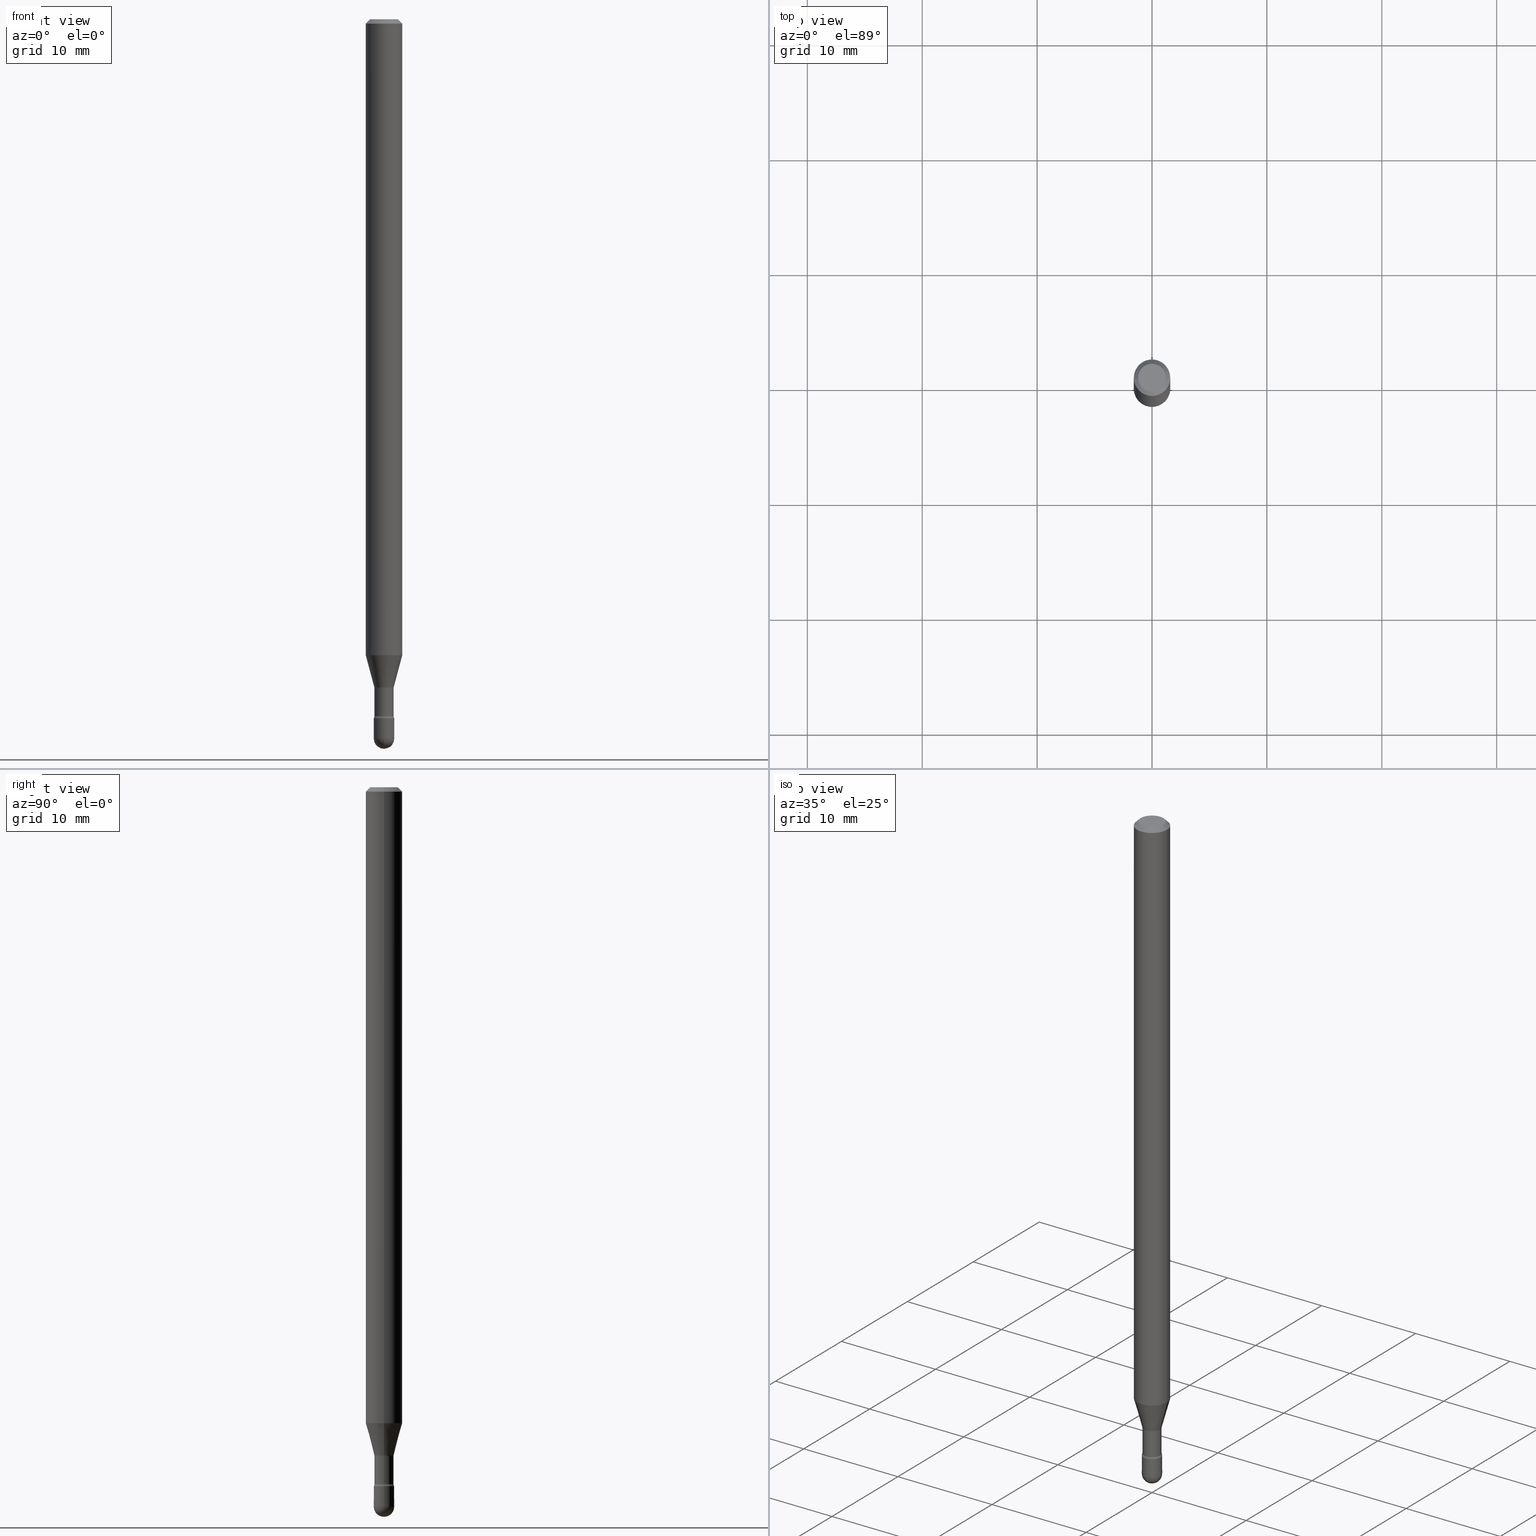
[diagram: canonical four-view strip — front | top / right | iso, engineering-drawing reading convention]
A machine part, canonical four-view strip (front | top / right | iso — engineering-drawing reading convention). The complete STEP part file that produces these views, byte-faithful:
ISO-10303-21;
HEADER;
FILE_DESCRIPTION (( 'STEP AP203' ),
    '1' );
FILE_NAME ('09515.STEP',
    '2024-04-10T00:07:16',
    ( '' ),
    ( '' ),
    'SwSTEP 2.0',
    'SolidWorks 2023',
    '' );
FILE_SCHEMA (( 'CONFIG_CONTROL_DESIGN' ));
ENDSEC;

DATA;
#1 = DIRECTION ( 'NONE',  ( -2.445468806185136877E-29, 3.491481338843145188E-15, 1.000000000000000000 ) ) ;
#2 = DIRECTION ( 'NONE',  ( -2.445468806185136597E-29, 3.491481338843145583E-15, 1.000000000000000000 ) ) ;
#3 = EDGE_CURVE ( 'NONE', #8, #126, #246, .T. ) ;
#4 = ORIENTED_EDGE ( 'NONE', *, *, #65, .F. ) ;
#5 = SPHERICAL_SURFACE ( 'NONE', #173, 0.03500000000000001721 ) ;
#6 = DIRECTION ( 'NONE',  ( 1.000000000000000000, -6.982962677686265922E-15, 4.883557194083112340E-29 ) ) ;
#7 = CARTESIAN_POINT ( 'NONE',  ( 0.03500000000000003803, -8.606501500248354960E-15, -2.395000000000000018 ) ) ;
#8 = VERTEX_POINT ( 'NONE', #147 ) ;
#9 = EDGE_CURVE ( 'NONE', #126, #8, #242, .T. ) ;
#10 = ORIENTED_EDGE ( 'NONE', *, *, #410, .F. ) ;
#11 = AXIS2_PLACEMENT_3D ( 'NONE', #271, #436, #136 ) ;
#12 = DIRECTION ( 'NONE',  ( -2.445468806185136597E-29, 3.491481338843145583E-15, 1.000000000000000000 ) ) ;
#13 = CARTESIAN_POINT ( 'NONE',  ( 5.856897790813402508E-29, -8.362097806529333416E-15, -2.395000000000000018 ) ) ;
#14 =( NAMED_UNIT ( * ) SI_UNIT ( $, .STERADIAN. ) SOLID_ANGLE_UNIT ( ) );
#15 = EDGE_CURVE ( 'NONE', #464, #356, #551, .T. ) ;
#16 = ORIENTED_EDGE ( 'NONE', *, *, #527, .T. ) ;
#17 = DIRECTION ( 'NONE',  ( -2.445468806185136597E-29, 3.491481338843145583E-15, 1.000000000000000000 ) ) ;
#18 = ORIENTED_EDGE ( 'NONE', *, *, #320, .F. ) ;
#19 = FACE_OUTER_BOUND ( 'NONE', #476, .T. ) ;
#20 = AXIS2_PLACEMENT_3D ( 'NONE', #309, #252, #98 ) ;
#21 = ORIENTED_EDGE ( 'NONE', *, *, #451, .T. ) ;
#22 = DIRECTION ( 'NONE',  ( 1.000000000000000000, -6.982962677686266711E-15, 4.852736867747366207E-29 ) ) ;
#23 = AXIS2_PLACEMENT_3D ( 'NONE', #229, #54, #447 ) ;
#24 = AXIS2_PLACEMENT_3D ( 'NONE', #418, #30, #354 ) ;
#25 = EDGE_CURVE ( 'NONE', #305, #402, #470, .T. ) ;
#26 = EDGE_CURVE ( 'NONE', #402, #305, #101, .T. ) ;
#27 = CARTESIAN_POINT ( 'NONE',  ( -1.169113584055446105E-44, 1.669184350826100908E-30, 4.780733988912460139E-16 ) ) ;
#28 = ORIENTED_EDGE ( 'NONE', *, *, #334, .F. ) ;
#29 = AXIS2_PLACEMENT_3D ( 'NONE', #324, #200, #169 ) ;
#30 = DIRECTION ( 'NONE',  ( -2.445468806185136597E-29, 3.491481338843145583E-15, 1.000000000000000000 ) ) ;
#31 = DIRECTION ( 'NONE',  ( 1.000000000000000000, -6.982962677686248567E-15, 0.000000000000000000 ) ) ;
#32 = ORIENTED_EDGE ( 'NONE', *, *, #462, .F. ) ;
#33 = DIRECTION ( 'NONE',  ( -2.445468806185136597E-29, 3.491481338843145583E-15, 1.000000000000000000 ) ) ;
#34 = CARTESIAN_POINT ( 'NONE',  ( 5.604952847305558337E-29, -8.002387199528881191E-15, -2.291974787463811225 ) ) ;
#35 = VERTEX_POINT ( 'NONE', #7 ) ;
#36 = FACE_OUTER_BOUND ( 'NONE', #44, .T. ) ;
#37 = CYLINDRICAL_SURFACE ( 'NONE', #486, 0.03500000000000000333 ) ;
#38 = ORIENTED_EDGE ( 'NONE', *, *, #94, .T. ) ;
#39 = CIRCLE ( 'NONE', #255, 0.03500000000000000333 ) ;
#40 = DIRECTION ( 'NONE',  ( -2.445468806185136597E-29, 3.491481338843145583E-15, 1.000000000000000000 ) ) ;
#41 = DIRECTION ( 'NONE',  ( 6.982962677686265922E-15, 1.000000000000000000, 0.000000000000000000 ) ) ;
#42 = AXIS2_PLACEMENT_3D ( 'NONE', #287, #60, #542 ) ;
#43 = FACE_OUTER_BOUND ( 'NONE', #428, .T. ) ;
#44 = EDGE_LOOP ( 'NONE', ( #141, #250, #485, #96 ) ) ;
#45 = DIRECTION ( 'NONE',  ( -1.000000000000000000, 7.105427357600978193E-15, 0.000000000000000000 ) ) ;
#46 = COORDINATED_UNIVERSAL_TIME_OFFSET ( 5, 0, .BEHIND. ) ;
#47 = EDGE_CURVE ( 'NONE', #86, #210, #50, .T. ) ;
#48 = ORIENTED_EDGE ( 'NONE', *, *, #83, .T. ) ;
#49 = CARTESIAN_POINT ( 'NONE',  ( 5.595458838786885594E-29, -7.988832271537191393E-15, -2.288092501787273303 ) ) ;
#50 = LINE ( 'NONE', #530, #380 ) ;
#51 = CIRCLE ( 'NONE', #121, 0.03289999999999994318 ) ;
#52 = DIRECTION ( 'NONE',  ( -2.445468806185136597E-29, 3.491481338843145583E-15, 1.000000000000000000 ) ) ;
#53 = EDGE_CURVE ( 'NONE', #115, #399, #453, .T. ) ;
#54 = DIRECTION ( 'NONE',  ( -2.445468806185136597E-29, 3.491481338843145583E-15, 1.000000000000000000 ) ) ;
#55 = CARTESIAN_POINT ( 'NONE',  ( 3.668203209277725232E-31, -5.237222008264747365E-17, -0.01500000000000008271 ) ) ;
#56 = DIRECTION ( 'NONE',  ( 2.445468806185136597E-29, -3.491481338843145583E-15, -1.000000000000000000 ) ) ;
#57 = CARTESIAN_POINT ( 'NONE',  ( 5.838179168722290516E-29, -8.335372575132116772E-15, -2.387345589506695731 ) ) ;
#58 = CALENDAR_DATE ( 2024, 9, 4 ) ;
#59 = EDGE_CURVE ( 'NONE', #105, #115, #237, .T. ) ;
#60 = DIRECTION ( 'NONE',  ( -2.445468806185136597E-29, 3.491481338843145583E-15, 1.000000000000000000 ) ) ;
#61 = TOROIDAL_SURFACE ( 'NONE', #107, 0.04790000000000001201, 0.01500000000000006710 ) ;
#62 = CARTESIAN_POINT ( 'NONE',  ( 0.06250000000000000000, -4.811533449433681963E-16, -0.01500000000000008271 ) ) ;
#63 = AXIS2_PLACEMENT_3D ( 'NONE', #99, #235, #102 ) ;
#64 = CIRCLE ( 'NONE', #90, 0.03289999999999999869 ) ;
#65 = EDGE_CURVE ( 'NONE', #116, #86, #389, .T. ) ;
#66 = CYLINDRICAL_SURFACE ( 'NONE', #233, 0.03289999999999997787 ) ;
#67 = ORIENTED_EDGE ( 'NONE', *, *, #364, .F. ) ;
#68 = CARTESIAN_POINT ( 'NONE',  ( 5.604952847305558337E-29, -8.002387199528881191E-15, -2.291974787463811225 ) ) ;
#69 = DIRECTION ( 'NONE',  ( 0.000000000000000000, 0.000000000000000000, 1.000000000000000000 ) ) ;
#70 = EDGE_LOOP ( 'NONE', ( #48, #16 ) ) ;
#71 = PERSON_AND_ORGANIZATION_ROLE ( 'design_supplier' ) ;
#72 = CIRCLE ( 'NONE', #368, 0.03500000000000001721 ) ;
#73 = VECTOR ( 'NONE', #377, 39.37007874015748143 ) ;
#74 = EDGE_CURVE ( 'NONE', #555, #525, #528, .T. ) ;
#75 = CARTESIAN_POINT ( 'NONE',  ( 0.03500000000000000333, -8.728703347107863365E-15, -2.464999999999999858 ) ) ;
#76 = PERSON_AND_ORGANIZATION ( #502, #139 ) ;
#77 = FACE_OUTER_BOUND ( 'NONE', #70, .T. ) ;
#78 = ORIENTED_EDGE ( 'NONE', *, *, #538, .F. ) ;
#79 = FACE_OUTER_BOUND ( 'NONE', #445, .T. ) ;
#80 = LENGTH_MEASURE_WITH_UNIT ( LENGTH_MEASURE( 0.02539999999999999897 ), #516 );
#81 = ORIENTED_EDGE ( 'NONE', *, *, #410, .T. ) ;
#82 = APPROVAL_DATE_TIME ( #474, #297 ) ;
#83 = EDGE_CURVE ( 'NONE', #184, #210, #360, .T. ) ;
#84 = COORDINATED_UNIVERSAL_TIME_OFFSET ( 5, 0, .BEHIND. ) ;
#85 = CARTESIAN_POINT ( 'NONE',  ( 0.03289999999999994318, -8.565112047227994531E-15, -2.387345589506695731 ) ) ;
#86 = VERTEX_POINT ( 'NONE', #290 ) ;
#87 = DIRECTION ( 'NONE',  ( -6.982962677686266711E-15, -1.000000000000000000, 3.491481338843145583E-15 ) ) ;
#88 = ADVANCED_FACE ( 'NONE', ( #463 ), #66, .T. ) ;
#89 = CARTESIAN_POINT ( 'NONE',  ( 6.028080607246362204E-29, -8.606501500248354960E-15, -2.464999999999999858 ) ) ;
#90 = AXIS2_PLACEMENT_3D ( 'NONE', #260, #333, #256 ) ;
#91 = APPROVAL_STATUS ( 'not_yet_approved' ) ;
#92 = DIRECTION ( 'NONE',  ( -1.000000000000000000, 6.982962677686266711E-15, 0.000000000000000000 ) ) ;
#93 = DIRECTION ( 'NONE',  ( 1.000000000000000000, -6.982962677686267499E-15, 4.884662768193073002E-29 ) ) ;
#94 = EDGE_CURVE ( 'NONE', #35, #413, #39, .T. ) ;
#95 = DIRECTION ( 'NONE',  ( 7.105427357601001859E-15, 1.000000000000000000, -3.491481338843145583E-15 ) ) ;
#96 = ORIENTED_EDGE ( 'NONE', *, *, #26, .F. ) ;
#97 = LINE ( 'NONE', #208, #138 ) ;
#98 = DIRECTION ( 'NONE',  ( 1.000000000000000000, -6.982962677686266711E-15, 4.883557194083113462E-29 ) ) ;
#99 = CARTESIAN_POINT ( 'NONE',  ( 5.604952847305558337E-29, -8.002387199528881191E-15, -2.291974787463811225 ) ) ;
#100 = DIRECTION ( 'NONE',  ( -2.445468806185136597E-29, 3.491481338843145583E-15, 1.000000000000000000 ) ) ;
#101 = CIRCLE ( 'NONE', #23, 0.06250000000000000000 ) ;
#102 = DIRECTION ( 'NONE',  ( 1.000000000000000000, -6.982962677686252511E-15, 0.000000000000000000 ) ) ;
#103 = AXIS2_PLACEMENT_3D ( 'NONE', #341, #559, #45 ) ;
#104 = PERSON_AND_ORGANIZATION ( #502, #139 ) ;
#105 = VERTEX_POINT ( 'NONE', #85 ) ;
#106 = EDGE_CURVE ( 'NONE', #555, #116, #72, .T. ) ;
#107 = AXIS2_PLACEMENT_3D ( 'NONE', #57, #17, #199 ) ;
#108 = PERSON_AND_ORGANIZATION ( #502, #139 ) ;
#109 = CC_DESIGN_APPROVAL ( #266, ( #553 ) ) ;
#110 = DIRECTION ( 'NONE',  ( -2.445468806185136597E-29, 3.491481338843145583E-15, 1.000000000000000000 ) ) ;
#111 = EDGE_CURVE ( 'NONE', #8, #402, #492, .T. ) ;
#112 = VECTOR ( 'NONE', #188, 39.37007874015748143 ) ;
#113 = CIRCLE ( 'NONE', #328, 0.03500000000000000333 ) ;
#114 = SECURITY_CLASSIFICATION ( '', '', #157 ) ;
#115 = VERTEX_POINT ( 'NONE', #228 ) ;
#116 = VERTEX_POINT ( 'NONE', #533 ) ;
#117 = CARTESIAN_POINT ( 'NONE',  ( 3.668203209277725232E-31, -5.237222008264747365E-17, -0.01500000000000008271 ) ) ;
#118 = CARTESIAN_POINT ( 'NONE',  ( 0.000000000000000000, 0.000000000000000000, 0.000000000000000000 ) ) ;
#119 = APPROVAL_STATUS ( 'not_yet_approved' ) ;
#120 = ORIENTED_EDGE ( 'NONE', *, *, #148, .F. ) ;
#121 = AXIS2_PLACEMENT_3D ( 'NONE', #134, #512, #180 ) ;
#122 = CIRCLE ( 'NONE', #204, 0.03500000000000000333 ) ;
#123 = LOCAL_TIME ( 20, 7, 16.00000000000000000, #84 ) ;
#124 = CYLINDRICAL_SURFACE ( 'NONE', #293, 0.03289999999999997787 ) ;
#125 = PERSON_AND_ORGANIZATION ( #502, #139 ) ;
#126 = VERTEX_POINT ( 'NONE', #529 ) ;
#127 = CALENDAR_DATE ( 2024, 9, 4 ) ;
#128 = CARTESIAN_POINT ( 'NONE',  ( -0.03500000000000000333, -8.235609695872808902E-15, -2.395000000000000018 ) ) ;
#129 = ORIENTED_EDGE ( 'NONE', *, *, #307, .F. ) ;
#130 = CARTESIAN_POINT ( 'NONE',  ( 0.04790000000000000507, -8.336871111790053896E-15, -2.291974787463811225 ) ) ;
#131 = ADVANCED_FACE ( 'NONE', ( #359 ), #182, .F. ) ;
#132 = DIRECTION ( 'NONE',  ( 1.000000000000000000, -6.982962677686265922E-15, 4.793737027410015373E-29 ) ) ;
#133 = CALENDAR_DATE ( 2024, 9, 4 ) ;
#134 = CARTESIAN_POINT ( 'NONE',  ( 5.838179168722289395E-29, -8.335372575132116772E-15, -2.387345589506695731 ) ) ;
#135 = ORIENTED_EDGE ( 'NONE', *, *, #65, .T. ) ;
#136 = DIRECTION ( 'NONE',  ( 1.000000000000000000, -6.982962677686235156E-15, 0.000000000000000000 ) ) ;
#137 = DIRECTION ( 'NONE',  ( -1.000000000000000000, 6.982962677686265922E-15, -4.883557194083112340E-29 ) ) ;
#138 = VECTOR ( 'NONE', #353, 39.37007874015748143 ) ;
#139 = ORGANIZATION ( 'UNSPECIFIED', 'UNSPECIFIED', '' ) ;
#140 = CARTESIAN_POINT ( 'NONE',  ( 2.444036937190778979E-16, 0.03499999999999164196, -2.395000000000000018 ) ) ;
#141 = ORIENTED_EDGE ( 'NONE', *, *, #249, .F. ) ;
#142 = DIRECTION ( 'NONE',  ( 6.982962677686265922E-15, 1.000000000000000000, 0.000000000000000000 ) ) ;
#143 = CARTESIAN_POINT ( 'NONE',  ( 2.023552857353652888E-45, -2.889097183224559242E-31, -8.274703207154537794E-17 ) ) ;
#144 = CARTESIAN_POINT ( 'NONE',  ( 5.856897790813402508E-29, -8.362097806529333416E-15, -2.395000000000000018 ) ) ;
#145 = DIRECTION ( 'NONE',  ( 1.000000000000000000, -6.982962677686267499E-15, 4.884662768193073002E-29 ) ) ;
#146 = AXIS2_PLACEMENT_3D ( 'NONE', #117, #392, #521 ) ;
#147 = CARTESIAN_POINT ( 'NONE',  ( -0.04749999999999999362, 3.578768372314208041E-16, -8.274703207154778150E-17 ) ) ;
#148 = EDGE_CURVE ( 'NONE', #365, #413, #545, .T. ) ;
#149 = CYLINDRICAL_SURFACE ( 'NONE', #303, 0.06250000000000000000 ) ;
#150 = CC_DESIGN_DATE_AND_TIME_ASSIGNMENT ( #432, #220, ( #501 ) ) ;
#151 = DIRECTION ( 'NONE',  ( -2.445468806185136597E-29, 3.491481338843145583E-15, 1.000000000000000000 ) ) ;
#152 = DIRECTION ( 'NONE',  ( 1.000000000000000000, -6.982962677686276966E-15, 0.000000000000000000 ) ) ;
#153 = ORIENTED_EDGE ( 'NONE', *, *, #190, .T. ) ;
#154 = LOCAL_TIME ( 20, 7, 16.00000000000000000, #304 ) ;
#155 = ADVANCED_FACE ( 'NONE', ( #43 ), #394, .F. ) ;
#156 = FACE_OUTER_BOUND ( 'NONE', #452, .T. ) ;
#157 = SECURITY_CLASSIFICATION_LEVEL ( 'unclassified' ) ;
#158 = AXIS2_PLACEMENT_3D ( 'NONE', #68, #475, #251 ) ;
#159 = TOROIDAL_SURFACE ( 'NONE', #487, 0.04790000000000000507, 0.01500000000000003240 ) ;
#160 = DIRECTION ( 'NONE',  ( -2.445468806185136597E-29, 3.491481338843145583E-15, 1.000000000000000000 ) ) ;
#161 = CARTESIAN_POINT ( 'NONE',  ( 5.856897790813402508E-29, -8.362097806529333416E-15, -2.395000000000000018 ) ) ;
#162 = FACE_OUTER_BOUND ( 'NONE', #514, .T. ) ;
#163 = ORIENTED_EDGE ( 'NONE', *, *, #544, .T. ) ;
#164 = DIRECTION ( 'NONE',  ( -2.445468806185136877E-29, 3.491481338843145188E-15, 1.000000000000000000 ) ) ;
#165 = CARTESIAN_POINT ( 'NONE',  ( 6.028080607246362204E-29, -8.606501500248354960E-15, -2.464999999999999858 ) ) ;
#166 = PERSON_AND_ORGANIZATION ( #502, #139 ) ;
#167 = ORIENTED_EDGE ( 'NONE', *, *, #185, .T. ) ;
#168 = SHAPE_DEFINITION_REPRESENTATION ( #337, #282 ) ;
#169 = DIRECTION ( 'NONE',  ( -7.105427357601001859E-15, -1.000000000000000000, 0.000000000000000000 ) ) ;
#170 = FACE_OUTER_BOUND ( 'NONE', #221, .T. ) ;
#171 = PERSON_AND_ORGANIZATION_ROLE ( 'design_owner' ) ;
#172 = ORIENTED_EDGE ( 'NONE', *, *, #83, .F. ) ;
#173 = AXIS2_PLACEMENT_3D ( 'NONE', #345, #137, #41 ) ;
#174 = CARTESIAN_POINT ( 'NONE',  ( -1.169113584055446105E-44, 1.669184350826100908E-30, 4.780733988912460139E-16 ) ) ;
#175 = APPROVAL_DATE_TIME ( #310, #230 ) ;
#176 = EDGE_CURVE ( 'NONE', #365, #105, #51, .T. ) ;
#177 = DIRECTION ( 'NONE',  ( 1.000000000000000000, -6.982962677686276966E-15, 0.000000000000000000 ) ) ;
#178 = ORIENTED_EDGE ( 'NONE', *, *, #47, .T. ) ;
#179 = DIRECTION ( 'NONE',  ( 0.2588190451025209060, 1.565188264969625123E-15, 0.9659258262890682012 ) ) ;
#180 = DIRECTION ( 'NONE',  ( 1.000000000000000000, -6.982962677686264344E-15, 0.000000000000000000 ) ) ;
#181 = DIRECTION ( 'NONE',  ( 1.000000000000000000, -6.982962677686272233E-15, 4.883557194083114583E-29 ) ) ;
#182 = PLANE ( 'NONE',  #433 ) ;
#183 = ORIENTED_EDGE ( 'NONE', *, *, #25, .T. ) ;
#184 = VERTEX_POINT ( 'NONE', #209 ) ;
#185 = EDGE_CURVE ( 'NONE', #279, #116, #411, .T. ) ;
#186 = TOROIDAL_SURFACE ( 'NONE', #20, 0.04790000000000001201, 0.01500000000000006710 ) ;
#187 = CC_DESIGN_APPROVAL ( #230, ( #501 ) ) ;
#188 = DIRECTION ( 'NONE',  ( -0.7071067811865475727, 2.468850131082257455E-15, -0.7071067811865474617 ) ) ;
#189 = EDGE_LOOP ( 'NONE', ( #273, #163, #439, #466, #498 ) ) ;
#190 = EDGE_CURVE ( 'NONE', #365, #399, #558, .T. ) ;
#191 = CARTESIAN_POINT ( 'NONE',  ( 0.000000000000000000, 0.000000000000000000, 0.000000000000000000 ) ) ;
#192 = CARTESIAN_POINT ( 'NONE',  ( 6.028080607246362204E-29, -8.606501500248354960E-15, -2.464999999999999858 ) ) ;
#193 = DIRECTION ( 'NONE',  ( -2.445468806185136597E-29, 3.491481338843145583E-15, 1.000000000000000000 ) ) ;
#194 = DIRECTION ( 'NONE',  ( -2.445468806185136597E-29, 3.491481338843145583E-15, 1.000000000000000000 ) ) ;
#195 =( NAMED_UNIT ( * ) PLANE_ANGLE_UNIT ( ) SI_UNIT ( $, .RADIAN. ) );
#196 = AXIS2_PLACEMENT_3D ( 'NONE', #480, #160, #416 ) ;
#197 = ORIENTED_EDGE ( 'NONE', *, *, #3, .F. ) ;
#198 = ADVANCED_FACE ( 'NONE', ( #379 ), #340, .T. ) ;
#199 = DIRECTION ( 'NONE',  ( 1.000000000000000000, -6.982962677686266711E-15, 4.883557194083113462E-29 ) ) ;
#200 = DIRECTION ( 'NONE',  ( -1.000000000000000000, 7.105427357601001070E-15, -4.926315508542082329E-29 ) ) ;
#201 = DIRECTION ( 'NONE',  ( 1.000000000000000000, -6.982962677686254878E-15, 0.000000000000000000 ) ) ;
#202 = EDGE_LOOP ( 'NONE', ( #520, #301, #21, #319 ) ) ;
#203 = AXIS2_PLACEMENT_3D ( 'NONE', #442, #370, #493 ) ;
#204 = AXIS2_PLACEMENT_3D ( 'NONE', #482, #223, #437 ) ;
#205 = ADVANCED_FACE ( 'NONE', ( #162 ), #472, .F. ) ;
#206 = APPROVAL_STATUS ( 'not_yet_approved' ) ;
#207 = ORIENTED_EDGE ( 'NONE', *, *, #111, .F. ) ;
#208 = CARTESIAN_POINT ( 'NONE',  ( 0.03500000000000000333, -2.444036937190193250E-16, 1.706661871528577808E-30 ) ) ;
#209 = CARTESIAN_POINT ( 'NONE',  ( 0.03500000000000000333, -8.606501500248353382E-15, -2.395000000000000018 ) ) ;
#210 = VERTEX_POINT ( 'NONE', #128 ) ;
#211 = VECTOR ( 'NONE', #232, 39.37007874015748143 ) ;
#212 = EDGE_CURVE ( 'NONE', #522, #479, #234, .T. ) ;
#213 = CONICAL_SURFACE ( 'NONE', #381, 0.03341111260566397706, 0.2617993877991495744 ) ;
#214 =( GEOMETRIC_REPRESENTATION_CONTEXT ( 3 ) GLOBAL_UNCERTAINTY_ASSIGNED_CONTEXT ( ( #317 ) ) GLOBAL_UNIT_ASSIGNED_CONTEXT ( ( #540, #195, #14 ) ) REPRESENTATION_CONTEXT ( 'NONE', 'WORKASPACE' ) );
#215 = CARTESIAN_POINT ( 'NONE',  ( 5.595458838786885594E-29, -7.988832271537191393E-15, -2.288092501787273303 ) ) ;
#216 = FACE_OUTER_BOUND ( 'NONE', #189, .T. ) ;
#217 = CARTESIAN_POINT ( 'NONE',  ( 6.028080607246362204E-29, -8.606501500248354960E-15, -2.464999999999999858 ) ) ;
#218 = EDGE_LOOP ( 'NONE', ( #227, #565, #270, #4 ) ) ;
#219 = DIRECTION ( 'NONE',  ( 1.000000000000000000, -6.982962677686276966E-15, 0.000000000000000000 ) ) ;
#220 = DATE_TIME_ROLE ( 'creation_date' ) ;
#221 = EDGE_LOOP ( 'NONE', ( #536, #386, #183, #207 ) ) ;
#222 = ADVANCED_FACE ( 'NONE', ( #170 ), #243, .T. ) ;
#223 = DIRECTION ( 'NONE',  ( -2.445468806185136597E-29, 3.491481338843145583E-15, 1.000000000000000000 ) ) ;
#224 = PRODUCT_RELATED_PRODUCT_CATEGORY ( 'detail', '', ( #415 ) ) ;
#225 = VECTOR ( 'NONE', #1, 39.37007874015748143 ) ;
#226 = DIRECTION ( 'NONE',  ( -1.000000000000000000, 6.982962677686265922E-15, -4.883557194083112340E-29 ) ) ;
#227 = ORIENTED_EDGE ( 'NONE', *, *, #106, .F. ) ;
#228 = CARTESIAN_POINT ( 'NONE',  ( 0.03289999999999999869, -8.232126671624758949E-15, -2.291974787463811225 ) ) ;
#229 = CARTESIAN_POINT ( 'NONE',  ( 3.668203209277725232E-31, -5.237222008264747365E-17, -0.01500000000000008271 ) ) ;
#230 = APPROVAL ( #119, 'UNSPECIFIED' ) ;
#231 = DIRECTION ( 'NONE',  ( 2.438088387897960049E-29, -3.491481338843145188E-15, -1.000000000000000000 ) ) ;
#232 = DIRECTION ( 'NONE',  ( -2.445468806185136877E-29, 3.491481338843145188E-15, 1.000000000000000000 ) ) ;
#233 = AXIS2_PLACEMENT_3D ( 'NONE', #27, #110, #456 ) ;
#234 = CIRCLE ( 'NONE', #24, 0.06250000000000000000 ) ;
#235 = DIRECTION ( 'NONE',  ( -2.445468806185136597E-29, 3.491481338843145583E-15, 1.000000000000000000 ) ) ;
#236 = CARTESIAN_POINT ( 'NONE',  ( -0.06250000000000000000, -3.386993324063092812E-15, -0.01500000000000008271 ) ) ;
#237 = LINE ( 'NONE', #401, #211 ) ;
#238 = ADVANCED_FACE ( 'NONE', ( #344 ), #213, .T. ) ;
#239 = DIRECTION ( 'NONE',  ( 1.000000000000000000, -6.982962677686266711E-15, 0.000000000000000000 ) ) ;
#240 = CARTESIAN_POINT ( 'NONE',  ( 5.329975796706934398E-29, -7.609792847743663382E-15, -2.179531296095961412 ) ) ;
#241 = DATE_AND_TIME ( #58, #532 ) ;
#242 = CIRCLE ( 'NONE', #321, 0.04749999999999999362 ) ;
#243 = CONICAL_SURFACE ( 'NONE', #146, 0.06250000000000000000, 0.7853981633974483900 ) ;
#244 = CARTESIAN_POINT ( 'NONE',  ( 0.06250000000000000000, -8.046228015099055052E-15, -2.179531296095961412 ) ) ;
#245 = EDGE_LOOP ( 'NONE', ( #81, #153, #489, #425 ) ) ;
#246 = CIRCLE ( 'NONE', #346, 0.04749999999999999362 ) ;
#247 = AXIS2_PLACEMENT_3D ( 'NONE', #240, #100, #326 ) ;
#248 = CC_DESIGN_APPROVAL ( #297, ( #114 ) ) ;
#249 = EDGE_CURVE ( 'NONE', #522, #402, #300, .T. ) ;
#250 = ORIENTED_EDGE ( 'NONE', *, *, #212, .T. ) ;
#251 = DIRECTION ( 'NONE',  ( 1.000000000000000000, -6.982962677686272233E-15, 4.883557194083114583E-29 ) ) ;
#252 = DIRECTION ( 'NONE',  ( -2.445468806185136597E-29, 3.491481338843145583E-15, 1.000000000000000000 ) ) ;
#253 = MECHANICAL_CONTEXT ( 'NONE', #509, 'mechanical' ) ;
#254 = EDGE_LOOP ( 'NONE', ( #560, #330, #372, #495 ) ) ;
#255 = AXIS2_PLACEMENT_3D ( 'NONE', #161, #298, #177 ) ;
#256 = DIRECTION ( 'NONE',  ( 1.000000000000000000, -6.982962677686252511E-15, 0.000000000000000000 ) ) ;
#257 = VECTOR ( 'NONE', #289, 39.37007874015748143 ) ;
#258 = CARTESIAN_POINT ( 'NONE',  ( -0.06250000000000000000, 4.440892098500642925E-16, 4.780733988912429571E-16 ) ) ;
#259 = DIRECTION ( 'NONE',  ( -2.445468806185136597E-29, 3.491481338843145583E-15, 1.000000000000000000 ) ) ;
#260 = CARTESIAN_POINT ( 'NONE',  ( 5.604952847305558337E-29, -8.002387199528881191E-15, -2.291974787463811225 ) ) ;
#261 = CALENDAR_DATE ( 2024, 9, 4 ) ;
#262 = ORIENTED_EDGE ( 'NONE', *, *, #375, .T. ) ;
#263 = ADVANCED_FACE ( 'NONE', ( #468 ), #124, .T. ) ;
#264 = CARTESIAN_POINT ( 'NONE',  ( 5.595458838786885594E-29, -7.988832271537191393E-15, -2.288092501787273303 ) ) ;
#265 = APPLICATION_PROTOCOL_DEFINITION ( 'international standard', 'config_control_design', 1994, #535 ) ;
#266 = APPROVAL ( #91, 'UNSPECIFIED' ) ;
#267 = ORIENTED_EDGE ( 'NONE', *, *, #3, .T. ) ;
#268 = DIRECTION ( 'NONE',  ( 1.000000000000000000, -6.982962677686254878E-15, 0.000000000000000000 ) ) ;
#269 = DIRECTION ( 'NONE',  ( 1.000000000000000000, -6.982962677686265922E-15, 4.876176775795935793E-29 ) ) ;
#270 = ORIENTED_EDGE ( 'NONE', *, *, #544, .F. ) ;
#271 = CARTESIAN_POINT ( 'NONE',  ( 0.04790000000000001201, -8.669856487393289478E-15, -2.387345589506695731 ) ) ;
#272 = APPROVAL_ROLE ( '' ) ;
#273 = ORIENTED_EDGE ( 'NONE', *, *, #47, .F. ) ;
#274 = DIRECTION ( 'NONE',  ( 1.000000000000000000, -6.982962677686255667E-15, 0.000000000000000000 ) ) ;
#275 = DIRECTION ( 'NONE',  ( 1.000000000000000000, -6.982962677686265922E-15, 4.876176775795935793E-29 ) ) ;
#276 = DIRECTION ( 'NONE',  ( -1.000000000000000000, 6.982962677686265922E-15, -4.876176775795935793E-29 ) ) ;
#277 = ORIENTED_EDGE ( 'NONE', *, *, #249, .T. ) ;
#278 = CARTESIAN_POINT ( 'NONE',  ( -0.06250000000000000000, 3.840629472727441958E-16, -0.01500000000000008271 ) ) ;
#279 = VERTEX_POINT ( 'NONE', #75 ) ;
#280 = CARTESIAN_POINT ( 'NONE',  ( 6.028080607246362204E-29, -8.606501500248354960E-15, -2.464999999999999858 ) ) ;
#281 = CONICAL_SURFACE ( 'NONE', #446, 0.06250000000000000000, 0.7853981633974483900 ) ;
#282 = ADVANCED_BREP_SHAPE_REPRESENTATION ( '09515', ( #491, #292, #362 ), #214 ) ;
#283 = APPROVAL_DATE_TIME ( #397, #266 ) ;
#284 = PERSON_AND_ORGANIZATION_ROLE ( 'classification_officer' ) ;
#285 = EDGE_CURVE ( 'NONE', #413, #35, #322, .T. ) ;
#286 = ORIENTED_EDGE ( 'NONE', *, *, #176, .F. ) ;
#287 = CARTESIAN_POINT ( 'NONE',  ( 5.838179168722289395E-29, -8.335372575132116772E-15, -2.387345589506695731 ) ) ;
#288 = DATE_TIME_ROLE ( 'classification_date' ) ;
#289 = DIRECTION ( 'NONE',  ( -0.2588190451025209060, 5.211531920934547097E-15, 0.9659258262890682012 ) ) ;
#290 = CARTESIAN_POINT ( 'NONE',  ( -0.03500000000000000333, -8.235609695872808902E-15, -2.464999999999999858 ) ) ;
#291 = ADVANCED_FACE ( 'NONE', ( #79 ), #552, .T. ) ;
#292 = MANIFOLD_SOLID_BREP ( 'Body-Move/Copy2[2]', #496 ) ;
#293 = AXIS2_PLACEMENT_3D ( 'NONE', #478, #40, #132 ) ;
#294 = LOCAL_TIME ( 20, 7, 16.00000000000000000, #419 ) ;
#295 = ADVANCED_FACE ( 'NONE', ( #36 ), #562, .T. ) ;
#296 = ORIENTED_EDGE ( 'NONE', *, *, #26, .T. ) ;
#297 = APPROVAL ( #206, 'UNSPECIFIED' ) ;
#298 = DIRECTION ( 'NONE',  ( -2.445468806185136597E-29, 3.491481338843145583E-15, 1.000000000000000000 ) ) ;
#299 = EDGE_LOOP ( 'NONE', ( #505, #277, #395, #32 ) ) ;
#300 = LINE ( 'NONE', #258, #225 ) ;
#301 = ORIENTED_EDGE ( 'NONE', *, *, #538, .T. ) ;
#302 = AXIS2_PLACEMENT_3D ( 'NONE', #524, #231, #276 ) ;
#303 = AXIS2_PLACEMENT_3D ( 'NONE', #367, #193, #325 ) ;
#304 = COORDINATED_UNIVERSAL_TIME_OFFSET ( 5, 0, .BEHIND. ) ;
#305 = VERTEX_POINT ( 'NONE', #331 ) ;
#306 = ORIENTED_EDGE ( 'NONE', *, *, #15, .T. ) ;
#307 = EDGE_CURVE ( 'NONE', #126, #305, #459, .T. ) ;
#308 = CARTESIAN_POINT ( 'NONE',  ( -2.486899575159748395E-16, -0.03500000000000861450, -2.464999999999999858 ) ) ;
#309 = CARTESIAN_POINT ( 'NONE',  ( 5.838179168722290516E-29, -8.335372575132116772E-15, -2.387345589506695731 ) ) ;
#310 = DATE_AND_TIME ( #133, #294 ) ;
#311 = CIRCLE ( 'NONE', #42, 0.03289999999999994318 ) ;
#312 = APPROVAL_PERSON_ORGANIZATION ( #125, #266, #272 ) ;
#313 = ADVANCED_FACE ( 'NONE', ( #156 ), #490, .T. ) ;
#314 = ORIENTED_EDGE ( 'NONE', *, *, #285, .T. ) ;
#315 = PERSON_AND_ORGANIZATION ( #502, #139 ) ;
#316 = DIRECTION ( 'NONE',  ( -2.445468806185136877E-29, 3.491481338843145188E-15, 1.000000000000000000 ) ) ;
#317 = UNCERTAINTY_MEASURE_WITH_UNIT (LENGTH_MEASURE( 1.000000000000000082E-05 ), #540, 'distance_accuracy_value', 'NONE');
#318 = CALENDAR_DATE ( 2024, 9, 4 ) ;
#319 = ORIENTED_EDGE ( 'NONE', *, *, #357, .F. ) ;
#320 = EDGE_CURVE ( 'NONE', #356, #479, #566, .T. ) ;
#321 = AXIS2_PLACEMENT_3D ( 'NONE', #143, #52, #145 ) ;
#322 = CIRCLE ( 'NONE', #506, 0.03500000000000000333 ) ;
#323 = CC_DESIGN_PERSON_AND_ORGANIZATION_ASSIGNMENT ( #166, #171, ( #415 ) ) ;
#324 = CARTESIAN_POINT ( 'NONE',  ( 6.028080607246362204E-29, -8.606501500248354960E-15, -2.464999999999999858 ) ) ;
#325 = DIRECTION ( 'NONE',  ( 1.000000000000000000, -6.982962677686266711E-15, 4.852736867747366207E-29 ) ) ;
#326 = DIRECTION ( 'NONE',  ( 1.000000000000000000, -6.982962677686262766E-15, 0.000000000000000000 ) ) ;
#327 = AXIS2_PLACEMENT_3D ( 'NONE', #55, #12, #239 ) ;
#328 = AXIS2_PLACEMENT_3D ( 'NONE', #280, #403, #504 ) ;
#329 = APPROVAL_PERSON_ORGANIZATION ( #404, #297, #561 ) ;
#330 = ORIENTED_EDGE ( 'NONE', *, *, #106, .T. ) ;
#331 = CARTESIAN_POINT ( 'NONE',  ( 0.06250000000000000000, -4.888073874380391431E-16, -0.01500000000000008271 ) ) ;
#332 = EDGE_LOOP ( 'NONE', ( #382, #547 ) ) ;
#333 = DIRECTION ( 'NONE',  ( -2.445468806185136597E-29, 3.491481338843145583E-15, 1.000000000000000000 ) ) ;
#334 = EDGE_CURVE ( 'NONE', #279, #184, #97, .T. ) ;
#335 = AXIS2_PLACEMENT_3D ( 'NONE', #554, #226, #515 ) ;
#336 = EDGE_LOOP ( 'NONE', ( #129, #197, #339, #296 ) ) ;
#337 = PRODUCT_DEFINITION_SHAPE ( 'NONE', 'NONE',  #501 ) ;
#338 = CARTESIAN_POINT ( 'NONE',  ( -0.03500000000000003803, -8.113407849013298919E-15, -2.395000000000000018 ) ) ;
#339 = ORIENTED_EDGE ( 'NONE', *, *, #111, .T. ) ;
#340 = SPHERICAL_SURFACE ( 'NONE', #335, 0.03500000000000001721 ) ;
#341 = CARTESIAN_POINT ( 'NONE',  ( -0.04790000000000000507, -7.662037229099792821E-15, -2.291974787463811225 ) ) ;
#342 = ORIENTED_EDGE ( 'NONE', *, *, #320, .T. ) ;
#343 = CC_DESIGN_PERSON_AND_ORGANIZATION_ASSIGNMENT ( #315, #400, ( #553 ) ) ;
#344 = FACE_OUTER_BOUND ( 'NONE', #352, .T. ) ;
#345 = CARTESIAN_POINT ( 'NONE',  ( 6.028080607246362204E-29, -8.606501500248354960E-15, -2.464999999999999858 ) ) ;
#346 = AXIS2_PLACEMENT_3D ( 'NONE', #363, #534, #93 ) ;
#347 = ORIENTED_EDGE ( 'NONE', *, *, #176, .T. ) ;
#348 = AXIS2_PLACEMENT_3D ( 'NONE', #89, #481, #465 ) ;
#349 = CIRCLE ( 'NONE', #103, 0.01500000000000002720 ) ;
#350 = DIRECTION ( 'NONE',  ( -2.445468806185136597E-29, 3.491481338843145583E-15, 1.000000000000000000 ) ) ;
#351 = DIRECTION ( 'NONE',  ( -2.445468806185136597E-29, 3.491481338843145583E-15, 1.000000000000000000 ) ) ;
#352 = EDGE_LOOP ( 'NONE', ( #262, #390, #510, #18 ) ) ;
#353 = DIRECTION ( 'NONE',  ( -2.445468806185136877E-29, 3.491481338843145188E-15, 1.000000000000000000 ) ) ;
#354 = DIRECTION ( 'NONE',  ( 1.000000000000000000, -6.982962677686262766E-15, 0.000000000000000000 ) ) ;
#355 = CARTESIAN_POINT ( 'NONE',  ( -0.04790000000000001201, -7.995022604703028402E-15, -2.387345589506695731 ) ) ;
#356 = VERTEX_POINT ( 'NONE', #378 ) ;
#357 = EDGE_CURVE ( 'NONE', #356, #115, #369, .T. ) ;
#358 = CC_DESIGN_PERSON_AND_ORGANIZATION_ASSIGNMENT ( #108, #284, ( #114 ) ) ;
#359 = FACE_OUTER_BOUND ( 'NONE', #332, .T. ) ;
#360 = CIRCLE ( 'NONE', #409, 0.03500000000000000333 ) ;
#361 = CIRCLE ( 'NONE', #247, 0.06250000000000000000 ) ;
#362 = AXIS2_PLACEMENT_3D ( 'NONE', #191, #69, #438 ) ;
#363 = CARTESIAN_POINT ( 'NONE',  ( 2.023552857353652888E-45, -2.889097183224559242E-31, -8.274703207154537794E-17 ) ) ;
#364 = EDGE_CURVE ( 'NONE', #105, #35, #531, .T. ) ;
#365 = VERTEX_POINT ( 'NONE', #440 ) ;
#366 = EDGE_LOOP ( 'NONE', ( #286, #434, #314, #67 ) ) ;
#367 = CARTESIAN_POINT ( 'NONE',  ( -1.169113584055446105E-44, 1.669184350826100908E-30, 4.780733988912460139E-16 ) ) ;
#368 = AXIS2_PLACEMENT_3D ( 'NONE', #217, #6, #142 ) ;
#369 = CIRCLE ( 'NONE', #420, 0.01500000000000002720 ) ;
#370 = DIRECTION ( 'NONE',  ( -2.445468806185136597E-29, 3.491481338843145583E-15, 1.000000000000000000 ) ) ;
#371 = FACE_OUTER_BOUND ( 'NONE', #336, .T. ) ;
#372 = ORIENTED_EDGE ( 'NONE', *, *, #185, .F. ) ;
#373 = AXIS2_PLACEMENT_3D ( 'NONE', #355, #95, #488 ) ;
#374 = ORIENTED_EDGE ( 'NONE', *, *, #357, .T. ) ;
#375 = EDGE_CURVE ( 'NONE', #356, #464, #539, .T. ) ;
#376 = CC_DESIGN_DATE_AND_TIME_ASSIGNMENT ( #241, #288, ( #114 ) ) ;
#377 = DIRECTION ( 'NONE',  ( -2.445468806185136877E-29, 3.491481338843145188E-15, 1.000000000000000000 ) ) ;
#378 = CARTESIAN_POINT ( 'NONE',  ( 0.03341111260566397706, -8.222140823882515987E-15, -2.288092501787273303 ) ) ;
#379 = FACE_OUTER_BOUND ( 'NONE', #254, .T. ) ;
#380 = VECTOR ( 'NONE', #316, 39.37007874015748143 ) ;
#381 = AXIS2_PLACEMENT_3D ( 'NONE', #215, #523, #384 ) ;
#382 = ORIENTED_EDGE ( 'NONE', *, *, #94, .F. ) ;
#383 = EDGE_CURVE ( 'NONE', #479, #522, #361, .T. ) ;
#384 = DIRECTION ( 'NONE',  ( 1.000000000000000000, -6.982962677686254878E-15, 0.000000000000000000 ) ) ;
#385 = CARTESIAN_POINT ( 'NONE',  ( 6.115168556468905002E-29, -8.726560215209356888E-15, -2.500000000000000000 ) ) ;
#386 = ORIENTED_EDGE ( 'NONE', *, *, #307, .T. ) ;
#387 = ORIENTED_EDGE ( 'NONE', *, *, #9, .T. ) ;
#388 = DIRECTION ( 'NONE',  ( 1.000000000000000000, -6.982962677686265922E-15, 4.876176775795936353E-29 ) ) ;
#389 = CIRCLE ( 'NONE', #458, 0.03500000000000000333 ) ;
#390 = ORIENTED_EDGE ( 'NONE', *, *, #455, .T. ) ;
#391 = AXIS2_PLACEMENT_3D ( 'NONE', #165, #259, #31 ) ;
#392 = DIRECTION ( 'NONE',  ( 2.445468806185136597E-29, -3.491481338843145583E-15, -1.000000000000000000 ) ) ;
#393 = EDGE_CURVE ( 'NONE', #525, #279, #113, .T. ) ;
#394 = PLANE ( 'NONE',  #302 ) ;
#395 = ORIENTED_EDGE ( 'NONE', *, *, #25, .F. ) ;
#396 = ORIENTED_EDGE ( 'NONE', *, *, #451, .F. ) ;
#397 = DATE_AND_TIME ( #318, #412 ) ;
#398 = DIRECTION ( 'NONE',  ( 1.000000000000000000, -6.982962677686248567E-15, 0.000000000000000000 ) ) ;
#399 = VERTEX_POINT ( 'NONE', #449 ) ;
#400 = PERSON_AND_ORGANIZATION_ROLE ( 'creator' ) ;
#401 = CARTESIAN_POINT ( 'NONE',  ( 0.03289999999999997787, -2.297394720958763284E-16, 4.780733988912475916E-16 ) ) ;
#402 = VERTEX_POINT ( 'NONE', #236 ) ;
#403 = DIRECTION ( 'NONE',  ( -2.445468806185136597E-29, 3.491481338843145583E-15, 1.000000000000000000 ) ) ;
#404 = PERSON_AND_ORGANIZATION ( #502, #139 ) ;
#405 = AXIS2_PLACEMENT_3D ( 'NONE', #144, #494, #275 ) ;
#406 = APPROVAL_PERSON_ORGANIZATION ( #517, #230, #471 ) ;
#407 = ADVANCED_FACE ( 'NONE', ( #19 ), #61, .F. ) ;
#408 = FACE_OUTER_BOUND ( 'NONE', #299, .T. ) ;
#409 = AXIS2_PLACEMENT_3D ( 'NONE', #13, #503, #152 ) ;
#410 = EDGE_CURVE ( 'NONE', #105, #365, #311, .T. ) ;
#411 = CIRCLE ( 'NONE', #348, 0.03500000000000000333 ) ;
#412 = LOCAL_TIME ( 20, 7, 16.00000000000000000, #46 ) ;
#413 = VERTEX_POINT ( 'NONE', #338 ) ;
#414 = CARTESIAN_POINT ( 'NONE',  ( 0.06250000000000000000, -4.364351673553899931E-16, 4.780733988912490708E-16 ) ) ;
#415 = PRODUCT ( '09515', '09515', '', ( #253 ) ) ;
#416 = DIRECTION ( 'NONE',  ( 1.000000000000000000, -6.982962677686265922E-15, 4.876176775795936353E-29 ) ) ;
#417 = ORIENTED_EDGE ( 'NONE', *, *, #190, .F. ) ;
#418 = CARTESIAN_POINT ( 'NONE',  ( 5.329975796706934398E-29, -7.609792847743663382E-15, -2.179531296095961412 ) ) ;
#419 = COORDINATED_UNIVERSAL_TIME_OFFSET ( 5, 0, .BEHIND. ) ;
#420 = AXIS2_PLACEMENT_3D ( 'NONE', #130, #87, #274 ) ;
#421 = ORIENTED_EDGE ( 'NONE', *, *, #59, .T. ) ;
#422 = LINE ( 'NONE', #457, #257 ) ;
#423 = CARTESIAN_POINT ( 'NONE',  ( 5.856897790813402508E-29, -8.362097806529333416E-15, -2.395000000000000018 ) ) ;
#424 = FACE_OUTER_BOUND ( 'NONE', #202, .T. ) ;
#425 = ORIENTED_EDGE ( 'NONE', *, *, #59, .F. ) ;
#426 = CARTESIAN_POINT ( 'NONE',  ( -0.03341111260566397706, -7.458567837937309797E-15, -2.288092501787273303 ) ) ;
#427 = DIRECTION ( 'NONE',  ( -2.445468806185136597E-29, 3.491481338843145583E-15, 1.000000000000000000 ) ) ;
#428 = EDGE_LOOP ( 'NONE', ( #267, #387 ) ) ;
#429 = ADVANCED_FACE ( 'NONE', ( #564 ), #186, .F. ) ;
#430 = CARTESIAN_POINT ( 'NONE',  ( -0.03289999999999997787, 2.337685600650744310E-16, 4.780733988912444362E-16 ) ) ;
#431 = FACE_OUTER_BOUND ( 'NONE', #218, .T. ) ;
#432 = DATE_AND_TIME ( #261, #123 ) ;
#433 = AXIS2_PLACEMENT_3D ( 'NONE', #140, #444, #269 ) ;
#434 = ORIENTED_EDGE ( 'NONE', *, *, #148, .T. ) ;
#435 = AXIS2_PLACEMENT_3D ( 'NONE', #174, #350, #22 ) ;
#436 = DIRECTION ( 'NONE',  ( -6.982962677686266711E-15, -1.000000000000000000, 3.491481338843145583E-15 ) ) ;
#437 = DIRECTION ( 'NONE',  ( 1.000000000000000000, -6.982962677686276966E-15, 0.000000000000000000 ) ) ;
#438 = DIRECTION ( 'NONE',  ( 1.000000000000000000, 0.000000000000000000, 0.000000000000000000 ) ) ;
#439 = ORIENTED_EDGE ( 'NONE', *, *, #393, .T. ) ;
#440 = CARTESIAN_POINT ( 'NONE',  ( -0.03289999999999994318, -8.107505932040171616E-15, -2.387345589506695731 ) ) ;
#441 = APPLICATION_PROTOCOL_DEFINITION ( 'international standard', 'config_control_design', 1994, #509 ) ;
#442 = CARTESIAN_POINT ( 'NONE',  ( 5.595458838786885594E-29, -7.988832271537191393E-15, -2.288092501787273303 ) ) ;
#443 = CC_DESIGN_PERSON_AND_ORGANIZATION_ASSIGNMENT ( #76, #483, ( #501 ) ) ;
#444 = DIRECTION ( 'NONE',  ( -2.438088387897960049E-29, 3.491481338843145188E-15, 1.000000000000000000 ) ) ;
#445 = EDGE_LOOP ( 'NONE', ( #537, #306, #342, #473 ) ) ;
#446 = AXIS2_PLACEMENT_3D ( 'NONE', #499, #56, #92 ) ;
#447 = DIRECTION ( 'NONE',  ( 1.000000000000000000, -6.982962677686266711E-15, 0.000000000000000000 ) ) ;
#448 = ORIENTED_EDGE ( 'NONE', *, *, #53, .T. ) ;
#449 = CARTESIAN_POINT ( 'NONE',  ( -0.03290000000000000563, -7.935111327265426523E-15, -2.291974787463811225 ) ) ;
#450 = COORDINATED_UNIVERSAL_TIME_OFFSET ( 5, 0, .BEHIND. ) ;
#451 = EDGE_CURVE ( 'NONE', #399, #115, #64, .T. ) ;
#452 = EDGE_LOOP ( 'NONE', ( #135, #178, #172, #28, #167 ) ) ;
#453 = CIRCLE ( 'NONE', #63, 0.03289999999999999869 ) ;
#454 = CC_DESIGN_SECURITY_CLASSIFICATION ( #114, ( #553 ) ) ;
#455 = EDGE_CURVE ( 'NONE', #464, #522, #422, .T. ) ;
#456 = DIRECTION ( 'NONE',  ( 1.000000000000000000, -6.982962677686265922E-15, 4.793737027410015373E-29 ) ) ;
#457 = CARTESIAN_POINT ( 'NONE',  ( -0.03341111260566397706, -7.751432037981018827E-15, -2.288092501787273303 ) ) ;
#458 = AXIS2_PLACEMENT_3D ( 'NONE', #192, #194, #398 ) ;
#459 = LINE ( 'NONE', #62, #546 ) ;
#460 = AXIS2_PLACEMENT_3D ( 'NONE', #264, #427, #268 ) ;
#461 = LINE ( 'NONE', #414, #73 ) ;
#462 = EDGE_CURVE ( 'NONE', #479, #305, #461, .T. ) ;
#463 = FACE_OUTER_BOUND ( 'NONE', #556, .T. ) ;
#464 = VERTEX_POINT ( 'NONE', #426 ) ;
#465 = DIRECTION ( 'NONE',  ( 1.000000000000000000, -6.982962677686248567E-15, 0.000000000000000000 ) ) ;
#466 = ORIENTED_EDGE ( 'NONE', *, *, #334, .T. ) ;
#467 = DIMENSIONAL_EXPONENTS ( 1.000000000000000000, 0.000000000000000000, 0.000000000000000000, 0.000000000000000000, 0.000000000000000000, 0.000000000000000000, 0.000000000000000000 ) ;
#468 = FACE_OUTER_BOUND ( 'NONE', #245, .T. ) ;
#469 = CARTESIAN_POINT ( 'NONE',  ( -0.06250000000000000000, -7.165703637893600766E-15, -2.179531296095961412 ) ) ;
#470 = CIRCLE ( 'NONE', #327, 0.06250000000000000000 ) ;
#471 = APPROVAL_ROLE ( '' ) ;
#472 = TOROIDAL_SURFACE ( 'NONE', #158, 0.04790000000000000507, 0.01500000000000003240 ) ;
#473 = ORIENTED_EDGE ( 'NONE', *, *, #212, .F. ) ;
#474 = DATE_AND_TIME ( #127, #154 ) ;
#475 = DIRECTION ( 'NONE',  ( -2.445468806185136597E-29, 3.491481338843145583E-15, 1.000000000000000000 ) ) ;
#476 = EDGE_LOOP ( 'NONE', ( #120, #10, #557, #38 ) ) ;
#477 = ADVANCED_FACE ( 'NONE', ( #408 ), #149, .T. ) ;
#478 = CARTESIAN_POINT ( 'NONE',  ( -1.169113584055446105E-44, 1.669184350826100908E-30, 4.780733988912460139E-16 ) ) ;
#479 = VERTEX_POINT ( 'NONE', #244 ) ;
#480 = CARTESIAN_POINT ( 'NONE',  ( 0.000000000000000000, 0.000000000000000000, 0.000000000000000000 ) ) ;
#481 = DIRECTION ( 'NONE',  ( -2.445468806185136597E-29, 3.491481338843145583E-15, 1.000000000000000000 ) ) ;
#482 = CARTESIAN_POINT ( 'NONE',  ( 5.856897790813402508E-29, -8.362097806529333416E-15, -2.395000000000000018 ) ) ;
#483 = PERSON_AND_ORGANIZATION_ROLE ( 'creator' ) ;
#484 = CLOSED_SHELL ( 'NONE', ( #313, #543, #511, #198, #519 ) ) ;
#485 = ORIENTED_EDGE ( 'NONE', *, *, #462, .T. ) ;
#486 = AXIS2_PLACEMENT_3D ( 'NONE', #118, #351, #388 ) ;
#487 = AXIS2_PLACEMENT_3D ( 'NONE', #34, #2, #181 ) ;
#488 = DIRECTION ( 'NONE',  ( -1.000000000000000000, 7.105427357601022369E-15, 0.000000000000000000 ) ) ;
#489 = ORIENTED_EDGE ( 'NONE', *, *, #53, .F. ) ;
#490 = CYLINDRICAL_SURFACE ( 'NONE', #196, 0.03500000000000000333 ) ;
#491 = MANIFOLD_SOLID_BREP ( 'Body-Move/Copy2[1]', #484 ) ;
#492 = LINE ( 'NONE', #278, #112 ) ;
#493 = DIRECTION ( 'NONE',  ( 1.000000000000000000, -6.982962677686254878E-15, 0.000000000000000000 ) ) ;
#494 = DIRECTION ( 'NONE',  ( -2.438088387897960049E-29, 3.491481338843145188E-15, 1.000000000000000000 ) ) ;
#495 = ORIENTED_EDGE ( 'NONE', *, *, #393, .F. ) ;
#496 = CLOSED_SHELL ( 'NONE', ( #550, #263, #429, #222, #477, #238, #291, #295, #500, #155, #131, #407, #88, #205 ) ) ;
#497 = CIRCLE ( 'NONE', #391, 0.03500000000000000333 ) ;
#498 = ORIENTED_EDGE ( 'NONE', *, *, #527, .F. ) ;
#499 = CARTESIAN_POINT ( 'NONE',  ( 3.668203209277725232E-31, -5.237222008264747365E-17, -0.01500000000000008271 ) ) ;
#500 = ADVANCED_FACE ( 'NONE', ( #371 ), #281, .T. ) ;
#501 = PRODUCT_DEFINITION ( 'UNKNOWN', '', #553, #549 ) ;
#502 = PERSON ( 'UNSPECIFIED', 'UNSPECIFIED', 'UNSPECIFIED', ('UNSPECIFIED'), ('UNSPECIFIED'), ('UNSPECIFIED') ) ;
#503 = DIRECTION ( 'NONE',  ( -2.445468806185136597E-29, 3.491481338843145583E-15, 1.000000000000000000 ) ) ;
#504 = DIRECTION ( 'NONE',  ( 1.000000000000000000, -6.982962677686248567E-15, 0.000000000000000000 ) ) ;
#505 = ORIENTED_EDGE ( 'NONE', *, *, #383, .T. ) ;
#506 = AXIS2_PLACEMENT_3D ( 'NONE', #423, #33, #219 ) ;
#507 = CC_DESIGN_PERSON_AND_ORGANIZATION_ASSIGNMENT ( #104, #71, ( #553 ) ) ;
#508 = AXIS2_PLACEMENT_3D ( 'NONE', #49, #151, #201 ) ;
#509 = APPLICATION_CONTEXT ( 'configuration controlled 3d designs of mechanical parts and assemblies' ) ;
#510 = ORIENTED_EDGE ( 'NONE', *, *, #383, .F. ) ;
#511 = ADVANCED_FACE ( 'NONE', ( #77 ), #541, .T. ) ;
#512 = DIRECTION ( 'NONE',  ( -2.445468806185136597E-29, 3.491481338843145583E-15, 1.000000000000000000 ) ) ;
#513 = ORIENTED_EDGE ( 'NONE', *, *, #375, .F. ) ;
#514 = EDGE_LOOP ( 'NONE', ( #78, #513, #374, #448 ) ) ;
#515 = DIRECTION ( 'NONE',  ( 6.982962677686265922E-15, 1.000000000000000000, 0.000000000000000000 ) ) ;
#516 =( LENGTH_UNIT ( ) NAMED_UNIT ( * ) SI_UNIT ( $, .METRE. ) );
#517 = PERSON_AND_ORGANIZATION ( #502, #139 ) ;
#518 = VECTOR ( 'NONE', #179, 39.37007874015748143 ) ;
#519 = ADVANCED_FACE ( 'NONE', ( #216 ), #37, .T. ) ;
#520 = ORIENTED_EDGE ( 'NONE', *, *, #15, .F. ) ;
#521 = DIRECTION ( 'NONE',  ( -1.000000000000000000, 6.982962677686266711E-15, 0.000000000000000000 ) ) ;
#522 = VERTEX_POINT ( 'NONE', #469 ) ;
#523 = DIRECTION ( 'NONE',  ( -2.445468806185136597E-29, 3.491481338843145583E-15, 1.000000000000000000 ) ) ;
#524 = CARTESIAN_POINT ( 'NONE',  ( 3.316907271900976096E-16, 0.04749999999999999362, 3.181781981480094004E-17 ) ) ;
#525 = VERTEX_POINT ( 'NONE', #308 ) ;
#526 = CARTESIAN_POINT ( 'NONE',  ( 0.03341111260566397706, -8.222140823882515987E-15, -2.288092501787273303 ) ) ;
#527 = EDGE_CURVE ( 'NONE', #210, #184, #122, .T. ) ;
#528 = CIRCLE ( 'NONE', #29, 0.03500000000000001721 ) ;
#529 = CARTESIAN_POINT ( 'NONE',  ( 0.04749999999999999362, -4.035134999187581581E-16, -8.274703207154280181E-17 ) ) ;
#530 = CARTESIAN_POINT ( 'NONE',  ( -0.03500000000000000333, 2.486899575160350887E-16, -1.721627281589217108E-30 ) ) ;
#531 = CIRCLE ( 'NONE', #11, 0.01500000000000007057 ) ;
#532 = LOCAL_TIME ( 20, 7, 16.00000000000000000, #450 ) ;
#533 = CARTESIAN_POINT ( 'NONE',  ( 2.444036937190796729E-16, 0.03499999999999140604, -2.464999999999999858 ) ) ;
#534 = DIRECTION ( 'NONE',  ( -2.445468806185136597E-29, 3.491481338843145583E-15, 1.000000000000000000 ) ) ;
#535 = APPLICATION_CONTEXT ( 'configuration controlled 3d designs of mechanical parts and assemblies' ) ;
#536 = ORIENTED_EDGE ( 'NONE', *, *, #9, .F. ) ;
#537 = ORIENTED_EDGE ( 'NONE', *, *, #455, .F. ) ;
#538 = EDGE_CURVE ( 'NONE', #464, #399, #349, .T. ) ;
#539 = CIRCLE ( 'NONE', #508, 0.03341111260566397706 ) ;
#540 =( CONVERSION_BASED_UNIT ( 'INCH', #80 ) LENGTH_UNIT ( ) NAMED_UNIT ( #467 ) );
#541 = PLANE ( 'NONE',  #405 ) ;
#542 = DIRECTION ( 'NONE',  ( 1.000000000000000000, -6.982962677686264344E-15, 0.000000000000000000 ) ) ;
#543 = ADVANCED_FACE ( 'NONE', ( #431 ), #5, .T. ) ;
#544 = EDGE_CURVE ( 'NONE', #86, #525, #497, .T. ) ;
#545 = CIRCLE ( 'NONE', #373, 0.01500000000000007057 ) ;
#546 = VECTOR ( 'NONE', #548, 39.37007874015748143 ) ;
#547 = ORIENTED_EDGE ( 'NONE', *, *, #285, .F. ) ;
#548 = DIRECTION ( 'NONE',  ( 0.7071067811865475727, -7.319954787623256045E-15, -0.7071067811865474617 ) ) ;
#549 = DESIGN_CONTEXT ( 'detailed design', #535, 'design' ) ;
#550 = ADVANCED_FACE ( 'NONE', ( #424 ), #159, .F. ) ;
#551 = CIRCLE ( 'NONE', #203, 0.03341111260566397706 ) ;
#552 = CONICAL_SURFACE ( 'NONE', #460, 0.03341111260566397706, 0.2617993877991495744 ) ;
#553 = PRODUCT_DEFINITION_FORMATION_WITH_SPECIFIED_SOURCE ( 'ANY', '', #415, .NOT_KNOWN. ) ;
#554 = CARTESIAN_POINT ( 'NONE',  ( 6.028080607246362204E-29, -8.606501500248354960E-15, -2.464999999999999858 ) ) ;
#555 = VERTEX_POINT ( 'NONE', #385 ) ;
#556 = EDGE_LOOP ( 'NONE', ( #417, #347, #421, #396 ) ) ;
#557 = ORIENTED_EDGE ( 'NONE', *, *, #364, .T. ) ;
#558 = LINE ( 'NONE', #430, #563 ) ;
#559 = DIRECTION ( 'NONE',  ( 7.105427357601001859E-15, 1.000000000000000000, -3.491481338843145583E-15 ) ) ;
#560 = ORIENTED_EDGE ( 'NONE', *, *, #74, .F. ) ;
#561 = APPROVAL_ROLE ( '' ) ;
#562 = CYLINDRICAL_SURFACE ( 'NONE', #435, 0.06250000000000000000 ) ;
#563 = VECTOR ( 'NONE', #164, 39.37007874015748143 ) ;
#564 = FACE_OUTER_BOUND ( 'NONE', #366, .T. ) ;
#565 = ORIENTED_EDGE ( 'NONE', *, *, #74, .T. ) ;
#566 = LINE ( 'NONE', #526, #518 ) ;
ENDSEC;
END-ISO-10303-21;
